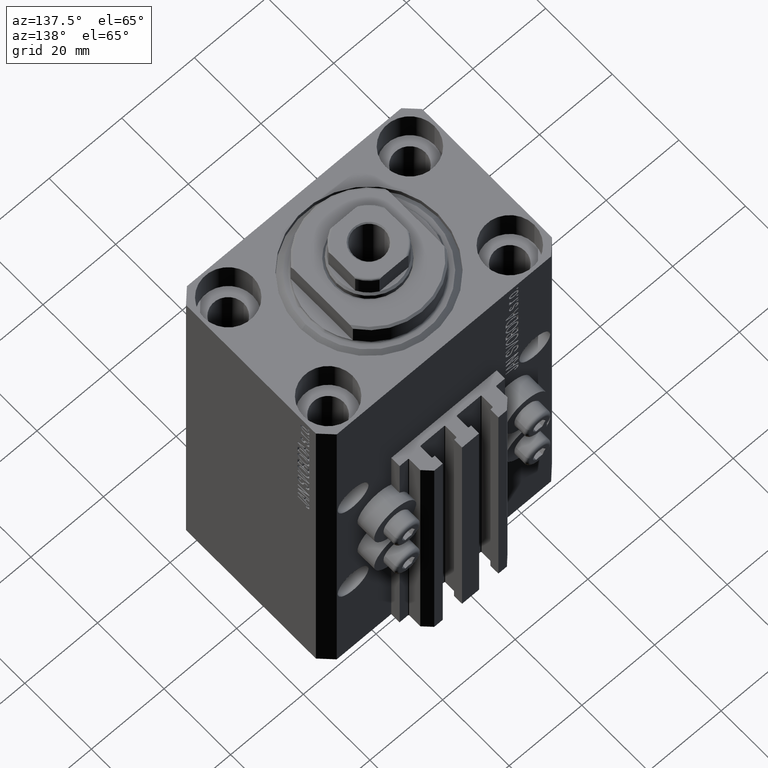
[diagram: clean part render]
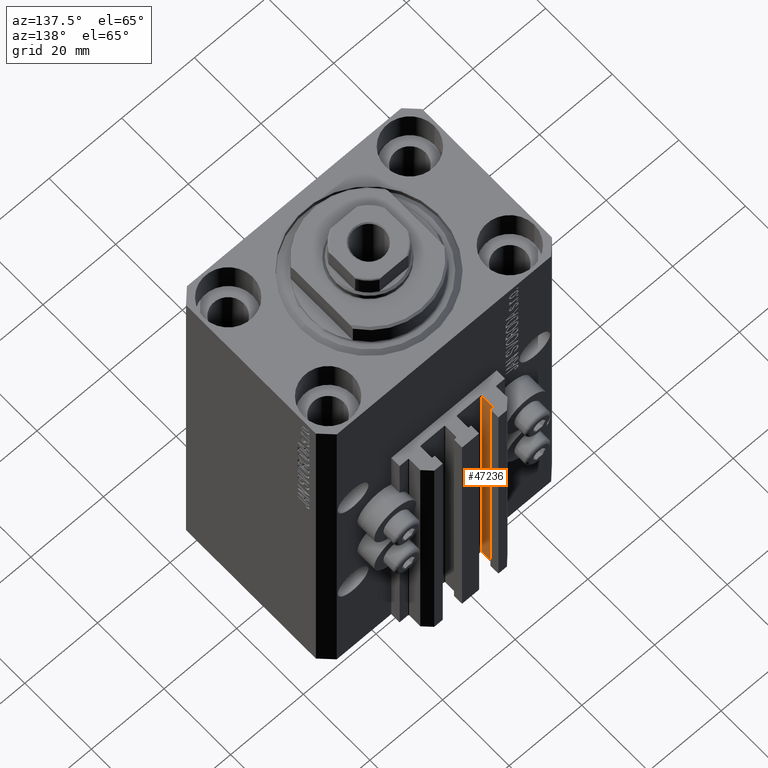
[diagram: same view with one face highlighted and labeled with its STEP entity id]
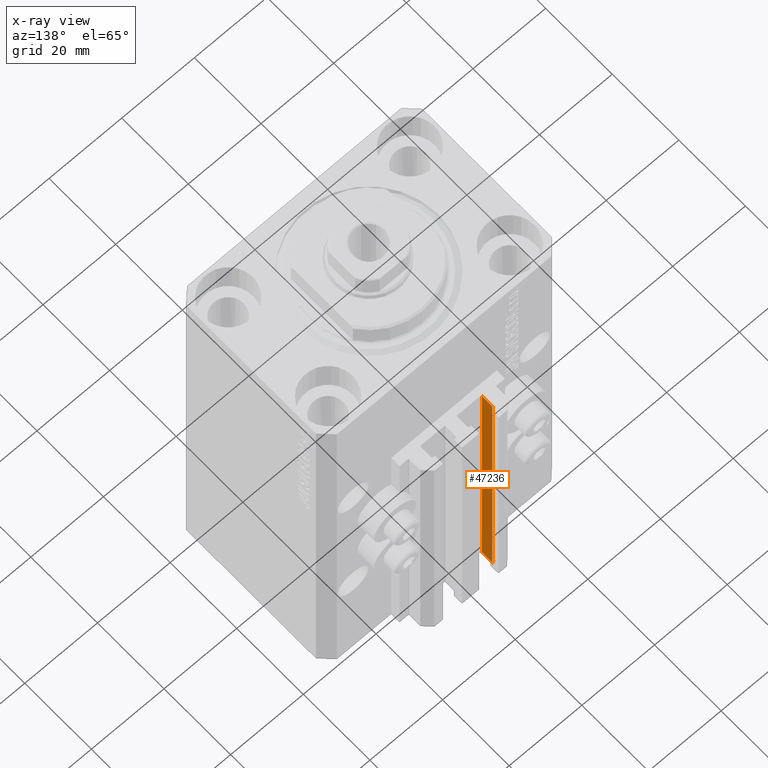
[diagram: x-ray of the same camera — body ghosted, the highlighted face saturated]
A machine part, auxiliary view. The second image highlights one B-rep face of the part: STEP entity #47236.
The next image is the same camera in x-ray: the body ghosted, the highlighted face saturated — about 0% of this face is hidden behind the body in this view.
In plain terms, the highlighted planar face has unit normal (1, -0, 0).
Its self-contained STEP definition (entity closure, byte-faithful):
#129 = VERTEX_POINT ( 'NONE', #20830 ) ;
#1035 = CARTESIAN_POINT ( 'NONE',  ( -8.399999999999998579, 24.69999999999949480, -33.00000000000000000 ) ) ;
#1377 = CARTESIAN_POINT ( 'NONE',  ( -8.399999999999996803, 27.89999999999948699, -108.0000000000000000 ) ) ;
#1720 = VERTEX_POINT ( 'NONE', #1377 ) ;
#2427 = ORIENTED_EDGE ( 'NONE', *, *, #14395, .F. ) ;
#3966 = LINE ( 'NONE', #21852, #17373 ) ;
#4597 = LINE ( 'NONE', #15704, #30047 ) ;
#4684 = VECTOR ( 'NONE', #15896, 1000.000000000000000 ) ;
#5296 = EDGE_CURVE ( 'NONE', #1720, #28868, #30537, .T. ) ;
#10729 = PLANE ( 'NONE',  #22320 ) ;
#13172 = ORIENTED_EDGE ( 'NONE', *, *, #46361, .F. ) ;
#14395 = EDGE_CURVE ( 'NONE', #29911, #28868, #4597, .T. ) ;
#14608 = DIRECTION ( 'NONE',  ( 1.084202172485506406E-15, 1.000000000000000000, 0.000000000000000000 ) ) ;
#15704 = CARTESIAN_POINT ( 'NONE',  ( -8.400000000000000355, 24.69999999999949480, -33.00000000000000000 ) ) ;
#15896 = DIRECTION ( 'NONE',  ( 0.000000000000000000, 0.000000000000000000, 1.000000000000000000 ) ) ;
#17373 = VECTOR ( 'NONE', #14608, 1000.000000000000000 ) ;
#20830 = CARTESIAN_POINT ( 'NONE',  ( -8.399999999999998579, 24.69999999999949480, -108.0000000000000000 ) ) ;
#21852 = CARTESIAN_POINT ( 'NONE',  ( -8.400000000000000355, 24.69999999999949480, -108.0000000000000000 ) ) ;
#22320 = AXIS2_PLACEMENT_3D ( 'NONE', #36554, #44038, #25459 ) ;
#25459 = DIRECTION ( 'NONE',  ( 1.084202172485506406E-15, 1.000000000000000000, 0.000000000000000000 ) ) ;
#25866 = DIRECTION ( 'NONE',  ( 1.084202172485506406E-15, 1.000000000000000000, 0.000000000000000000 ) ) ;
#28868 = VERTEX_POINT ( 'NONE', #34322 ) ;
#29911 = VERTEX_POINT ( 'NONE', #1035 ) ;
#30047 = VECTOR ( 'NONE', #25866, 1000.000000000000000 ) ;
#30537 = LINE ( 'NONE', #45244, #30927 ) ;
#30846 = LINE ( 'NONE', #35410, #4684 ) ;
#30927 = VECTOR ( 'NONE', #36823, 1000.000000000000000 ) ;
#31504 = ORIENTED_EDGE ( 'NONE', *, *, #32251, .T. ) ;
#32251 = EDGE_CURVE ( 'NONE', #129, #1720, #3966, .T. ) ;
#32523 = EDGE_LOOP ( 'NONE', ( #2427, #13172, #31504, #36265 ) ) ;
#33164 = FACE_OUTER_BOUND ( 'NONE', #32523, .T. ) ;
#34322 = CARTESIAN_POINT ( 'NONE',  ( -8.399999999999996803, 27.89999999999948699, -33.00000000000000000 ) ) ;
#35410 = CARTESIAN_POINT ( 'NONE',  ( -8.399999999999998579, 24.69999999999949480, -108.0000000000000000 ) ) ;
#36265 = ORIENTED_EDGE ( 'NONE', *, *, #5296, .T. ) ;
#36554 = CARTESIAN_POINT ( 'NONE',  ( -8.400000000000000355, 24.69999999999949480, -108.0000000000000000 ) ) ;
#36823 = DIRECTION ( 'NONE',  ( 0.000000000000000000, 0.000000000000000000, 1.000000000000000000 ) ) ;
#44038 = DIRECTION ( 'NONE',  ( 1.000000000000000000, -1.084202172485506406E-15, 0.000000000000000000 ) ) ;
#45244 = CARTESIAN_POINT ( 'NONE',  ( -8.399999999999996803, 27.89999999999948699, -108.0000000000000000 ) ) ;
#46361 = EDGE_CURVE ( 'NONE', #129, #29911, #30846, .T. ) ;
#47236 = ADVANCED_FACE ( 'NONE', ( #33164 ), #10729, .T. ) ;